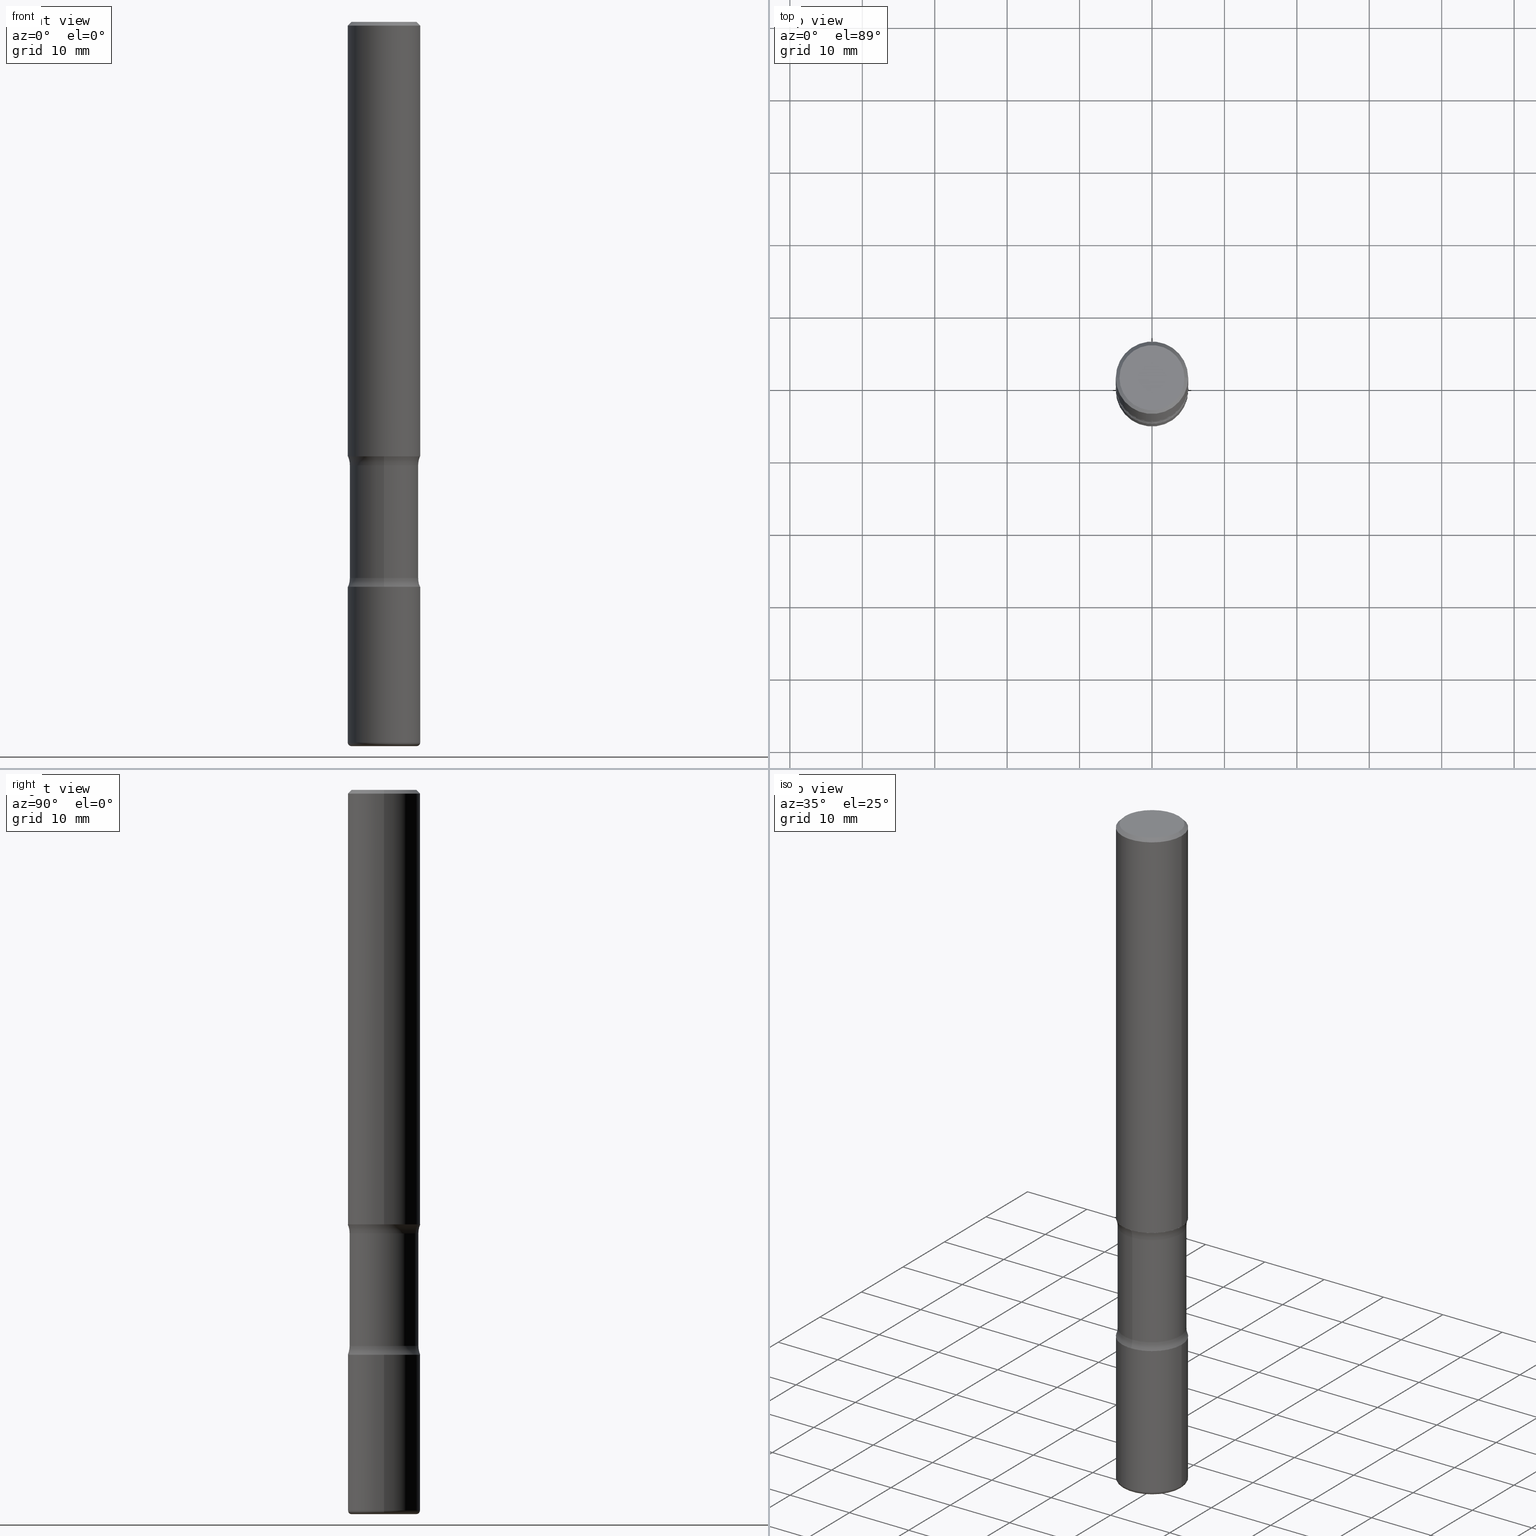
[diagram: canonical four-view strip — front | top / right | iso, engineering-drawing reading convention]
A machine part, canonical four-view strip (front | top / right | iso — engineering-drawing reading convention). The complete STEP part file that produces these views, byte-faithful:
ISO-10303-21;
HEADER;
FILE_DESCRIPTION (( 'STEP AP203' ),
    '1' );
FILE_NAME ('47670.STEP',
    '2024-03-02T06:50:35',
    ( '' ),
    ( '' ),
    'SwSTEP 2.0',
    'SolidWorks 2023',
    '' );
FILE_SCHEMA (( 'CONFIG_CONTROL_DESIGN' ));
ENDSEC;

DATA;
#1 = FACE_OUTER_BOUND ( 'NONE', #471, .T. ) ;
#2 = CIRCLE ( 'NONE', #203, 0.1968500000000001915 ) ;
#3 = AXIS2_PLACEMENT_3D ( 'NONE', #152, #329, #328 ) ;
#4 = SECURITY_CLASSIFICATION ( '', '', #187 ) ;
#5 = CARTESIAN_POINT ( 'NONE',  ( 4.890937612370289799E-31, -6.982962677686315028E-17, -0.02000000000000006981 ) ) ;
#6 = APPROVAL ( #221, 'UNSPECIFIED' ) ;
#7 = FACE_OUTER_BOUND ( 'NONE', #514, .T. ) ;
#8 = ORIENTED_EDGE ( 'NONE', *, *, #522, .F. ) ;
#9 = CARTESIAN_POINT ( 'NONE',  ( 9.710227154047748282E-29, -1.362793696358492956E-14, -3.937000000000000277 ) ) ;
#10 = CARTESIAN_POINT ( 'NONE',  ( 0.1768499999999998962, -1.316798864272041549E-15, 4.268512490109333727E-18 ) ) ;
#11 = CARTESIAN_POINT ( 'NONE',  ( 9.627810689950883669E-29, -1.374596203102546341E-14, -3.937000000000000277 ) ) ;
#12 = DIRECTION ( 'NONE',  ( 1.000000000000000000, 0.000000000000000000, 0.000000000000000000 ) ) ;
#13 = DIRECTION ( 'NONE',  ( 1.000000000000000000, -6.982962677686265133E-15, 0.000000000000000000 ) ) ;
#14 = DIRECTION ( 'NONE',  ( 2.540626945080027570E-29, -3.355209467880745729E-15, -1.000000000000000000 ) ) ;
#15 = ADVANCED_FACE ( 'NONE', ( #259 ), #44, .F. ) ;
#16 = DIRECTION ( 'NONE',  ( -2.445468806185136597E-29, 3.491481338843145583E-15, 1.000000000000000000 ) ) ;
#17 = APPLICATION_PROTOCOL_DEFINITION ( 'international standard', 'config_control_design', 1994, #419 ) ;
#18 = AXIS2_PLACEMENT_3D ( 'NONE', #355, #311, #346 ) ;
#19 = DIRECTION ( 'NONE',  ( 7.105427357601001859E-15, 1.000000000000000000, -3.491481338843145583E-15 ) ) ;
#20 = ORIENTED_EDGE ( 'NONE', *, *, #476, .F. ) ;
#21 = DATE_TIME_ROLE ( 'classification_date' ) ;
#22 = CARTESIAN_POINT ( 'NONE',  ( 7.509790156913936305E-29, -1.072199004345341739E-14, -3.070900000000000407 ) ) ;
#23 = VERTEX_POINT ( 'NONE', #408 ) ;
#24 = PERSON_AND_ORGANIZATION_ROLE ( 'creator' ) ;
#25 = LINE ( 'NONE', #550, #339 ) ;
#26 = CIRCLE ( 'NONE', #128, 0.1968500000000002748 ) ;
#27 = AXIS2_PLACEMENT_3D ( 'NONE', #11, #305, #535 ) ;
#28 = CIRCLE ( 'NONE', #289, 0.1968499999999999417 ) ;
#29 = ADVANCED_FACE ( 'NONE', ( #527 ), #442, .T. ) ;
#30 = PLANE ( 'NONE',  #183 ) ;
#31 = EDGE_CURVE ( 'NONE', #159, #254, #345, .T. ) ;
#32 = CARTESIAN_POINT ( 'NONE',  ( 5.832814217159742143E-29, -8.507337647765213396E-15, -2.410836174808470123 ) ) ;
#33 = DIRECTION ( 'NONE',  ( 2.540626945080028130E-29, -3.355209467880746123E-15, -1.000000000000000000 ) ) ;
#34 = EDGE_LOOP ( 'NONE', ( #316, #542, #361, #297 ) ) ;
#35 = APPROVAL ( #362, 'UNSPECIFIED' ) ;
#36 = AXIS2_PLACEMENT_3D ( 'NONE', #413, #417, #536 ) ;
#37 = ORIENTED_EDGE ( 'NONE', *, *, #295, .F. ) ;
#38 = CIRCLE ( 'NONE', #80, 0.1768499999999998962 ) ;
#39 = CARTESIAN_POINT ( 'NONE',  ( -1.350489030861251670E-15, -0.1968500000000109051, -3.070899999999999963 ) ) ;
#40 = ORIENTED_EDGE ( 'NONE', *, *, #101, .T. ) ;
#41 = CC_DESIGN_DATE_AND_TIME_ASSIGNMENT ( #448, #21, ( #4 ) ) ;
#42 = ORIENTED_EDGE ( 'NONE', *, *, #168, .T. ) ;
#43 = VERTEX_POINT ( 'NONE', #436 ) ;
#44 = TOROIDAL_SURFACE ( 'NONE', #420, 0.3120000000000000551, 0.1250000000000000278 ) ;
#45 = FACE_OUTER_BOUND ( 'NONE', #376, .T. ) ;
#46 = ADVANCED_FACE ( 'NONE', ( #56 ), #288, .T. ) ;
#47 = ADVANCED_FACE ( 'NONE', ( #484 ), #78, .F. ) ;
#48 = LINE ( 'NONE', #170, #98 ) ;
#49 = DIRECTION ( 'NONE',  ( 2.540626945080028130E-29, -3.355209467880746123E-15, -1.000000000000000000 ) ) ;
#50 = DIRECTION ( 'NONE',  ( -6.982962677686266711E-15, -1.000000000000000000, 3.491481338843145583E-15 ) ) ;
#51 = CARTESIAN_POINT ( 'NONE',  ( -0.1771500000000001962, -1.241845339225123848E-14, -3.917300000000000448 ) ) ;
#52 = ORIENTED_EDGE ( 'NONE', *, *, #247, .T. ) ;
#53 = COORDINATED_UNIVERSAL_TIME_OFFSET ( 5, 0, .BEHIND. ) ;
#54 = EDGE_CURVE ( 'NONE', #452, #83, #156, .T. ) ;
#55 = CARTESIAN_POINT ( 'NONE',  ( 0.1968500000000000527, -1.374596203102542003E-15, 9.598753983154302260E-30 ) ) ;
#56 = FACE_OUTER_BOUND ( 'NONE', #34, .T. ) ;
#57 = APPLICATION_PROTOCOL_DEFINITION ( 'international standard', 'config_control_design', 1994, #458 ) ;
#58 = ORIENTED_EDGE ( 'NONE', *, *, #386, .T. ) ;
#59 = DIRECTION ( 'NONE',  ( -2.445468806185136597E-29, 3.491481338843145583E-15, 1.000000000000000000 ) ) ;
#60 = COORDINATED_UNIVERSAL_TIME_OFFSET ( 5, 0, .BEHIND. ) ;
#61 = CIRCLE ( 'NONE', #204, 0.1870000000000001106 ) ;
#62 = DIRECTION ( 'NONE',  ( 6.982962677686266711E-15, 1.000000000000000000, -2.921762560068729806E-15 ) ) ;
#63 = EDGE_CURVE ( 'NONE', #179, #85, #390, .T. ) ;
#64 = ORIENTED_EDGE ( 'NONE', *, *, #374, .T. ) ;
#65 = MANIFOLD_SOLID_BREP ( 'Body-Move/Copy2[4]', #323 ) ;
#66 = ORIENTED_EDGE ( 'NONE', *, *, #253, .F. ) ;
#67 = CYLINDRICAL_SURFACE ( 'NONE', #454, 0.1968500000000000527 ) ;
#68 = ADVANCED_FACE ( 'NONE', ( #371 ), #378, .F. ) ;
#69 = DIRECTION ( 'NONE',  ( 2.438088387897960049E-29, -3.491481338843145188E-15, -1.000000000000000000 ) ) ;
#70 = CIRCLE ( 'NONE', #3, 0.1771500000000001962 ) ;
#71 = VERTEX_POINT ( 'NONE', #155 ) ;
#72 = CARTESIAN_POINT ( 'NONE',  ( 1.234936949548815209E-15, 0.1768499999999998962, -6.153342185293597578E-16 ) ) ;
#73 = EDGE_CURVE ( 'NONE', #23, #327, #26, .T. ) ;
#74 = DIRECTION ( 'NONE',  ( -6.982962677686264344E-15, -1.000000000000000000, 0.000000000000000000 ) ) ;
#75 = DIRECTION ( 'NONE',  ( -2.445468806185136597E-29, 3.491481338843145583E-15, 1.000000000000000000 ) ) ;
#76 = ORIENTED_EDGE ( 'NONE', *, *, #153, .F. ) ;
#77 = CARTESIAN_POINT ( 'NONE',  ( 4.890937612370289799E-31, -6.982962677686315028E-17, -0.02000000000000006981 ) ) ;
#78 = TOROIDAL_SURFACE ( 'NONE', #118, 0.3120000000000001106, 0.1250000000000000833 ) ;
#79 = ORIENTED_EDGE ( 'NONE', *, *, #153, .T. ) ;
#80 = AXIS2_PLACEMENT_3D ( 'NONE', #422, #75, #245 ) ;
#81 = LOCAL_TIME ( 1, 50, 35.00000000000000000, #227 ) ;
#82 = LENGTH_MEASURE_WITH_UNIT ( LENGTH_MEASURE( 0.02539999999999999897 ), #307 );
#83 = VERTEX_POINT ( 'NONE', #320 ) ;
#84 = CARTESIAN_POINT ( 'NONE',  ( 0.000000000000000000, 0.000000000000000000, 0.000000000000000000 ) ) ;
#85 = VERTEX_POINT ( 'NONE', #91 ) ;
#86 = DIRECTION ( 'NONE',  ( -2.445468806185136597E-29, 3.491481338843145583E-15, 1.000000000000000000 ) ) ;
#87 = DIRECTION ( 'NONE',  ( 6.860497997771529196E-15, 1.000000000000000000, 0.000000000000000000 ) ) ;
#88 = PRODUCT_DEFINITION_SHAPE ( 'NONE', 'NONE',  #207 ) ;
#89 = CC_DESIGN_PERSON_AND_ORGANIZATION_ASSIGNMENT ( #349, #24, ( #157 ) ) ;
#90 = CARTESIAN_POINT ( 'NONE',  ( 0.1771500000000001962, -1.491421168700237936E-14, -3.917300000000000448 ) ) ;
#91 = CARTESIAN_POINT ( 'NONE',  ( -0.1968500000000001360, -2.760000047352310125E-15, -2.362200000000000077 ) ) ;
#92 = ORIENTED_EDGE ( 'NONE', *, *, #513, .F. ) ;
#93 = APPROVAL_STATUS ( 'not_yet_approved' ) ;
#94 = DIRECTION ( 'NONE',  ( 2.540626945080028130E-29, -3.355209467880746123E-15, -1.000000000000000000 ) ) ;
#95 = AXIS2_PLACEMENT_3D ( 'NONE', #51, #19, #267 ) ;
#96 = PLANE ( 'NONE',  #477 ) ;
#97 = AXIS2_PLACEMENT_3D ( 'NONE', #173, #216, #13 ) ;
#98 = VECTOR ( 'NONE', #303, 39.37007874015748143 ) ;
#99 = CARTESIAN_POINT ( 'NONE',  ( 9.579634954469036932E-29, -1.367717984865025539E-14, -3.917300000000000448 ) ) ;
#100 = PERSON_AND_ORGANIZATION ( #220, #313 ) ;
#101 = EDGE_CURVE ( 'NONE', #210, #468, #538, .T. ) ;
#102 = FACE_OUTER_BOUND ( 'NONE', #143, .T. ) ;
#103 = DIRECTION ( 'NONE',  ( 2.540626945080028130E-29, -3.355209467880746123E-15, -1.000000000000000000 ) ) ;
#104 = CARTESIAN_POINT ( 'NONE',  ( 5.847933680864636237E-29, -8.485685715193371918E-15, -2.410836174808470123 ) ) ;
#105 = ORIENTED_EDGE ( 'NONE', *, *, #386, .F. ) ;
#106 = EDGE_CURVE ( 'NONE', #83, #452, #453, .T. ) ;
#107 = DIRECTION ( 'NONE',  ( 1.000000000000000000, -6.982962677686272233E-15, 0.000000000000000000 ) ) ;
#108 = ORIENTED_EDGE ( 'NONE', *, *, #476, .T. ) ;
#109 = AXIS2_PLACEMENT_3D ( 'NONE', #404, #230, #308 ) ;
#110 = PERSON_AND_ORGANIZATION ( #220, #313 ) ;
#111 = CIRCLE ( 'NONE', #379, 0.01969999999999985998 ) ;
#112 = EDGE_LOOP ( 'NONE', ( #66, #209, #309, #286 ) ) ;
#113 = DIRECTION ( 'NONE',  ( -6.982962677686265133E-15, -1.000000000000000000, 0.000000000000000000 ) ) ;
#114 = EDGE_CURVE ( 'NONE', #43, #83, #248, .T. ) ;
#115 = DIRECTION ( 'NONE',  ( -2.445468806185136597E-29, 3.491481338843145583E-15, 1.000000000000000000 ) ) ;
#116 = DIRECTION ( 'NONE',  ( 1.000000000000000000, -6.982962677686265133E-15, 0.000000000000000000 ) ) ;
#117 = FACE_OUTER_BOUND ( 'NONE', #275, .T. ) ;
#118 = AXIS2_PLACEMENT_3D ( 'NONE', #359, #103, #226 ) ;
#119 =( GEOMETRIC_REPRESENTATION_CONTEXT ( 3 ) GLOBAL_UNCERTAINTY_ASSIGNED_CONTEXT ( ( #443 ) ) GLOBAL_UNIT_ASSIGNED_CONTEXT ( ( #302, #281, #498 ) ) REPRESENTATION_CONTEXT ( 'NONE', 'WORKASPACE' ) );
#120 = ADVANCED_FACE ( 'NONE', ( #1 ), #96, .F. ) ;
#121 = CARTESIAN_POINT ( 'NONE',  ( 7.509790156913936305E-29, -1.072199004345341739E-14, -3.070900000000000407 ) ) ;
#122 = ORIENTED_EDGE ( 'NONE', *, *, #101, .F. ) ;
#123 = EDGE_LOOP ( 'NONE', ( #451, #241, #394, #380 ) ) ;
#124 = CIRCLE ( 'NONE', #139, 0.1870000000000000551 ) ;
#125 = ORIENTED_EDGE ( 'NONE', *, *, #395, .F. ) ;
#126 = CARTESIAN_POINT ( 'NONE',  ( 7.386223780689915972E-29, -1.055880548925453445E-14, -3.022263825191530362 ) ) ;
#127 = CC_DESIGN_PERSON_AND_ORGANIZATION_ASSIGNMENT ( #365, #537, ( #4 ) ) ;
#128 = AXIS2_PLACEMENT_3D ( 'NONE', #492, #433, #435 ) ;
#129 = LOCAL_TIME ( 1, 50, 35.00000000000000000, #53 ) ;
#130 = DIRECTION ( 'NONE',  ( 2.540626945080028130E-29, -3.355209467880746123E-15, -1.000000000000000000 ) ) ;
#131 = ORIENTED_EDGE ( 'NONE', *, *, #292, .T. ) ;
#132 = DIRECTION ( 'NONE',  ( 6.982962677686266711E-15, 1.000000000000000000, -2.921762560068729017E-15 ) ) ;
#133 = CARTESIAN_POINT ( 'NONE',  ( 7.509790156913936305E-29, -1.072199004345341739E-14, -3.070900000000000407 ) ) ;
#134 = CARTESIAN_POINT ( 'NONE',  ( 7.390851908567657271E-29, -1.055217774671693035E-14, -3.022263825191530362 ) ) ;
#135 = APPROVAL_ROLE ( '' ) ;
#136 = DIRECTION ( 'NONE',  ( 1.000000000000000000, -6.982962677686279332E-15, 0.000000000000000000 ) ) ;
#137 = CIRCLE ( 'NONE', #462, 0.1968500000000002748 ) ;
#138 = CARTESIAN_POINT ( 'NONE',  ( 1.374596203102617931E-15, 0.1968499999999894223, -3.070900000000000851 ) ) ;
#139 = AXIS2_PLACEMENT_3D ( 'NONE', #368, #502, #62 ) ;
#140 = DIRECTION ( 'NONE',  ( 2.540626945080028130E-29, -3.355209467880745729E-15, -1.000000000000000000 ) ) ;
#141 = DIRECTION ( 'NONE',  ( -2.445468806185136597E-29, 3.491481338843145583E-15, 1.000000000000000000 ) ) ;
#142 = DIRECTION ( 'NONE',  ( -2.438088387897960049E-29, 3.491481338843145188E-15, 1.000000000000000000 ) ) ;
#143 = EDGE_LOOP ( 'NONE', ( #64, #553, #500, #520 ) ) ;
#144 = ORIENTED_EDGE ( 'NONE', *, *, #431, .F. ) ;
#145 = DIRECTION ( 'NONE',  ( -1.000000000000000000, 6.982962677686265922E-15, -4.876176775795935793E-29 ) ) ;
#146 = ORIENTED_EDGE ( 'NONE', *, *, #314, .F. ) ;
#147 = ADVANCED_FACE ( 'NONE', ( #496 ), #164, .F. ) ;
#148 = ORIENTED_EDGE ( 'NONE', *, *, #374, .F. ) ;
#149 = CARTESIAN_POINT ( 'NONE',  ( 1.305814020727405957E-15, 0.1869999999999895079, -3.022263825191530806 ) ) ;
#150 = DIRECTION ( 'NONE',  ( -6.982962677686265922E-15, -1.000000000000000000, 3.355209467880745729E-15 ) ) ;
#151 = ORIENTED_EDGE ( 'NONE', *, *, #258, .F. ) ;
#152 = CARTESIAN_POINT ( 'NONE',  ( 9.627810689950883669E-29, -1.374596203102546341E-14, -3.937000000000000277 ) ) ;
#153 = EDGE_CURVE ( 'NONE', #210, #425, #534, .T. ) ;
#154 = CARTESIAN_POINT ( 'NONE',  ( 5.709247840935720689E-29, -8.344153093566332027E-15, -2.362200000000000077 ) ) ;
#155 = CARTESIAN_POINT ( 'NONE',  ( -0.1968499999999999417, 1.304766576325678113E-15, -0.02000000000000006981 ) ) ;
#156 = CIRCLE ( 'NONE', #182, 0.1968500000000001082 ) ;
#157 = PRODUCT_DEFINITION_FORMATION_WITH_SPECIFIED_SOURCE ( 'ANY', '', #479, .NOT_KNOWN. ) ;
#158 = CARTESIAN_POINT ( 'NONE',  ( -1.316701078222244837E-15, -0.1870000000000086315, -2.410836174808469679 ) ) ;
#159 = VERTEX_POINT ( 'NONE', #347 ) ;
#160 = DIRECTION ( 'NONE',  ( -2.445468806185136877E-29, 3.491481338843145188E-15, 1.000000000000000000 ) ) ;
#161 = ORIENTED_EDGE ( 'NONE', *, *, #31, .T. ) ;
#162 = ORIENTED_EDGE ( 'NONE', *, *, #163, .T. ) ;
#163 = EDGE_CURVE ( 'NONE', #85, #71, #360, .T. ) ;
#164 = TOROIDAL_SURFACE ( 'NONE', #412, 0.3120000000000001106, 0.1250000000000000833 ) ;
#165 = AXIS2_PLACEMENT_3D ( 'NONE', #521, #529, #132 ) ;
#166 = ORIENTED_EDGE ( 'NONE', *, *, #363, .F. ) ;
#167 = CARTESIAN_POINT ( 'NONE',  ( 7.390851908567657271E-29, -1.055217774671693035E-14, -3.022263825191530362 ) ) ;
#168 = EDGE_CURVE ( 'NONE', #198, #480, #2, .T. ) ;
#169 = CARTESIAN_POINT ( 'NONE',  ( 0.1968500000000001915, -1.209658624655596058E-14, -3.070900000000000407 ) ) ;
#170 = CARTESIAN_POINT ( 'NONE',  ( -0.1968500000000001360, 1.398703375343758182E-15, -9.682923725166790684E-30 ) ) ;
#171 = AXIS2_PLACEMENT_3D ( 'NONE', #167, #130, #315 ) ;
#172 = CARTESIAN_POINT ( 'NONE',  ( 5.776686413970529753E-29, -8.247577218615279626E-15, -2.362200000000000077 ) ) ;
#173 = CARTESIAN_POINT ( 'NONE',  ( 5.776686413970529753E-29, -8.247577218615279626E-15, -2.362200000000000077 ) ) ;
#174 = CARTESIAN_POINT ( 'NONE',  ( 7.509790156913936305E-29, -1.072199004345341739E-14, -3.070900000000000407 ) ) ;
#175 = DIRECTION ( 'NONE',  ( 2.540626945080028130E-29, -3.355209467880746123E-15, -1.000000000000000000 ) ) ;
#176 = DATE_AND_TIME ( #310, #478 ) ;
#177 = DIRECTION ( 'NONE',  ( 2.540626945080028130E-29, -3.355209467880746123E-15, -1.000000000000000000 ) ) ;
#178 = LINE ( 'NONE', #55, #517 ) ;
#179 = VERTEX_POINT ( 'NONE', #396 ) ;
#180 = APPROVAL_ROLE ( '' ) ;
#181 = CYLINDRICAL_SURFACE ( 'NONE', #18, 0.1968500000000001360 ) ;
#182 = AXIS2_PLACEMENT_3D ( 'NONE', #488, #16, #401 ) ;
#183 = AXIS2_PLACEMENT_3D ( 'NONE', #121, #364, #150 ) ;
#184 = APPROVAL_PERSON_ORGANIZATION ( #100, #35, #135 ) ;
#185 = CARTESIAN_POINT ( 'NONE',  ( 5.776686413970529753E-29, -8.247577218615279626E-15, -2.362200000000000077 ) ) ;
#186 = DESIGN_CONTEXT ( 'detailed design', #458, 'design' ) ;
#187 = SECURITY_CLASSIFICATION_LEVEL ( 'unclassified' ) ;
#188 = ORIENTED_EDGE ( 'NONE', *, *, #300, .F. ) ;
#189 = APPROVAL_ROLE ( '' ) ;
#190 = APPROVAL ( #93, 'UNSPECIFIED' ) ;
#191 = PLANE ( 'NONE',  #539 ) ;
#192 = CALENDAR_DATE ( 2024, 2, 3 ) ;
#193 = ORIENTED_EDGE ( 'NONE', *, *, #54, .F. ) ;
#194 = DIRECTION ( 'NONE',  ( 1.000000000000000000, -6.982962677686266711E-15, 4.883557194083112340E-29 ) ) ;
#195 = CIRCLE ( 'NONE', #255, 0.1968500000000001915 ) ;
#196 = ADVANCED_FACE ( 'NONE', ( #257 ), #393, .F. ) ;
#197 = CARTESIAN_POINT ( 'NONE',  ( -0.1968500000000001915, -1.080088157070807781E-14, -3.070900000000000407 ) ) ;
#198 = VERTEX_POINT ( 'NONE', #138 ) ;
#199 = DIRECTION ( 'NONE',  ( 6.982962677686265922E-15, 1.000000000000000000, -2.775563112689112751E-15 ) ) ;
#200 = DIRECTION ( 'NONE',  ( 2.540626945080028130E-29, -3.355209467880745729E-15, -1.000000000000000000 ) ) ;
#201 = VERTEX_POINT ( 'NONE', #441 ) ;
#202 = CARTESIAN_POINT ( 'NONE',  ( 4.890937612370289799E-31, -6.982962677686315028E-17, -0.02000000000000006981 ) ) ;
#203 = AXIS2_PLACEMENT_3D ( 'NONE', #133, #526, #263 ) ;
#204 = AXIS2_PLACEMENT_3D ( 'NONE', #32, #33, #377 ) ;
#205 = CC_DESIGN_APPROVAL ( #35, ( #4 ) ) ;
#206 = ORIENTED_EDGE ( 'NONE', *, *, #114, .T. ) ;
#207 = PRODUCT_DEFINITION ( 'UNKNOWN', '', #157, #186 ) ;
#208 = CARTESIAN_POINT ( 'NONE',  ( -2.140475375304660122E-15, -0.3120000000000086038, -2.410836174808469234 ) ) ;
#209 = ORIENTED_EDGE ( 'NONE', *, *, #168, .F. ) ;
#210 = VERTEX_POINT ( 'NONE', #10 ) ;
#211 = CIRCLE ( 'NONE', #229, 0.1250000000000000278 ) ;
#212 = AXIS2_PLACEMENT_3D ( 'NONE', #5, #439, #399 ) ;
#213 = ADVANCED_FACE ( 'NONE', ( #7 ), #523, .F. ) ;
#214 = CARTESIAN_POINT ( 'NONE',  ( 9.579634954469036932E-29, -1.367717984865025539E-14, -3.917300000000000448 ) ) ;
#215 = ORIENTED_EDGE ( 'NONE', *, *, #106, .T. ) ;
#216 = DIRECTION ( 'NONE',  ( -2.445468806185136597E-29, 3.491481338843145583E-15, 1.000000000000000000 ) ) ;
#217 = AXIS2_PLACEMENT_3D ( 'NONE', #185, #531, #116 ) ;
#218 = CIRCLE ( 'NONE', #165, 0.1870000000000001106 ) ;
#219 = DIRECTION ( 'NONE',  ( 6.982962677686265922E-15, 1.000000000000000000, -3.355209467880746123E-15 ) ) ;
#220 = PERSON ( 'UNSPECIFIED', 'UNSPECIFIED', 'UNSPECIFIED', ('UNSPECIFIED'), ('UNSPECIFIED'), ('UNSPECIFIED') ) ;
#221 = APPROVAL_STATUS ( 'not_yet_approved' ) ;
#222 = DIRECTION ( 'NONE',  ( 0.7071067811865472397, -7.319954787623254468E-15, -0.7071067811865477948 ) ) ;
#223 = DIRECTION ( 'NONE',  ( -2.445468806185136597E-29, 3.491481338843145583E-15, 1.000000000000000000 ) ) ;
#224 = CALENDAR_DATE ( 2024, 2, 3 ) ;
#225 = DIRECTION ( 'NONE',  ( -2.445468806185136597E-29, 3.491481338843145583E-15, 1.000000000000000000 ) ) ;
#226 = DIRECTION ( 'NONE',  ( 6.982962677686265922E-15, 1.000000000000000000, -3.355209467880746123E-15 ) ) ;
#227 = COORDINATED_UNIVERSAL_TIME_OFFSET ( 5, 0, .BEHIND. ) ;
#228 = ORIENTED_EDGE ( 'NONE', *, *, #247, .F. ) ;
#229 = AXIS2_PLACEMENT_3D ( 'NONE', #466, #501, #113 ) ;
#230 = DIRECTION ( 'NONE',  ( -2.445468806185136597E-29, 3.491481338843145583E-15, 1.000000000000000000 ) ) ;
#231 = APPROVAL_PERSON_ORGANIZATION ( #317, #6, #180 ) ;
#232 = CC_DESIGN_DATE_AND_TIME_ASSIGNMENT ( #494, #481, ( #207 ) ) ;
#233 = ORIENTED_EDGE ( 'NONE', *, *, #163, .F. ) ;
#234 = APPROVAL_DATE_TIME ( #176, #190 ) ;
#235 = DIRECTION ( 'NONE',  ( 1.000000000000000000, -6.982962677686266711E-15, 4.876176775795935793E-29 ) ) ;
#236 = DIRECTION ( 'NONE',  ( 6.982962677686265922E-15, 1.000000000000000000, -3.355209467880746123E-15 ) ) ;
#237 = PERSON_AND_ORGANIZATION_ROLE ( 'creator' ) ;
#238 = DIRECTION ( 'NONE',  ( -0.7071067811865472397, 2.468850131082253905E-15, -0.7071067811865477948 ) ) ;
#239 = DIRECTION ( 'NONE',  ( 2.540626945080028130E-29, -3.355209467880746123E-15, -1.000000000000000000 ) ) ;
#240 = AXIS2_PLACEMENT_3D ( 'NONE', #174, #273, #145 ) ;
#241 = ORIENTED_EDGE ( 'NONE', *, *, #253, .T. ) ;
#242 = CARTESIAN_POINT ( 'NONE',  ( 0.000000000000000000, 0.000000000000000000, 0.000000000000000000 ) ) ;
#243 = EDGE_CURVE ( 'NONE', #179, #425, #178, .T. ) ;
#244 = DIRECTION ( 'NONE',  ( -1.000000000000000000, 6.982962677686265922E-15, -4.876176775795935793E-29 ) ) ;
#245 = DIRECTION ( 'NONE',  ( 1.000000000000000000, -6.982962677686266711E-15, 4.875932113059880811E-29 ) ) ;
#246 = ORIENTED_EDGE ( 'NONE', *, *, #559, .F. ) ;
#247 = EDGE_CURVE ( 'NONE', #335, #426, #277, .T. ) ;
#248 = CIRCLE ( 'NONE', #95, 0.01969999999999985998 ) ;
#249 = APPROVAL_PERSON_ORGANIZATION ( #409, #190, #189 ) ;
#250 = VERTEX_POINT ( 'NONE', #290 ) ;
#251 = MANIFOLD_SOLID_BREP ( 'Body-Move/Copy2[1]', #428 ) ;
#252 = EDGE_LOOP ( 'NONE', ( #233, #341, #382, #166 ) ) ;
#253 = EDGE_CURVE ( 'NONE', #480, #201, #504, .T. ) ;
#254 = VERTEX_POINT ( 'NONE', #149 ) ;
#255 = AXIS2_PLACEMENT_3D ( 'NONE', #350, #141, #270 ) ;
#256 = MANIFOLD_SOLID_BREP ( 'Body-Move/Copy2[2]', #545 ) ;
#257 = FACE_OUTER_BOUND ( 'NONE', #540, .T. ) ;
#258 = EDGE_CURVE ( 'NONE', #327, #23, #137, .T. ) ;
#259 = FACE_OUTER_BOUND ( 'NONE', #123, .T. ) ;
#260 = CALENDAR_DATE ( 2024, 2, 3 ) ;
#261 = AXIS2_PLACEMENT_3D ( 'NONE', #99, #223, #397 ) ;
#262 = CIRCLE ( 'NONE', #369, 0.1968500000000001915 ) ;
#263 = DIRECTION ( 'NONE',  ( 6.982962677686265133E-15, 1.000000000000000000, -2.775563112689113934E-15 ) ) ;
#264 = ORIENTED_EDGE ( 'NONE', *, *, #533, .F. ) ;
#265 = CYLINDRICAL_SURFACE ( 'NONE', #343, 0.1870000000000000828 ) ;
#266 = ADVANCED_BREP_SHAPE_REPRESENTATION ( '47670', ( #251, #256, #65, #403 ), #119 ) ;
#267 = DIRECTION ( 'NONE',  ( -1.000000000000000000, 7.105427357600978193E-15, 0.000000000000000000 ) ) ;
#268 = ORIENTED_EDGE ( 'NONE', *, *, #395, .T. ) ;
#269 = DATE_AND_TIME ( #260, #549 ) ;
#270 = DIRECTION ( 'NONE',  ( 1.000000000000000000, -6.982962677686272233E-15, 0.000000000000000000 ) ) ;
#271 = EDGE_CURVE ( 'NONE', #198, #254, #211, .T. ) ;
#272 = ORIENTED_EDGE ( 'NONE', *, *, #544, .F. ) ;
#273 = DIRECTION ( 'NONE',  ( 2.438088387897960049E-29, -3.491481338843145188E-15, -1.000000000000000000 ) ) ;
#274 = ORIENTED_EDGE ( 'NONE', *, *, #73, .F. ) ;
#275 = EDGE_LOOP ( 'NONE', ( #423, #557, #8, #105 ) ) ;
#276 = PERSON_AND_ORGANIZATION_ROLE ( 'design_supplier' ) ;
#277 = CIRCLE ( 'NONE', #312, 0.1968500000000001915 ) ;
#278 = FACE_OUTER_BOUND ( 'NONE', #509, .T. ) ;
#279 = AXIS2_PLACEMENT_3D ( 'NONE', #84, #515, #291 ) ;
#280 = EDGE_LOOP ( 'NONE', ( #246, #551, #321, #460 ) ) ;
#281 =( NAMED_UNIT ( * ) PLANE_ANGLE_UNIT ( ) SI_UNIT ( $, .RADIAN. ) );
#282 = EDGE_LOOP ( 'NONE', ( #125, #37 ) ) ;
#283 = DIRECTION ( 'NONE',  ( 1.000000000000000000, -6.982962677686266711E-15, 0.000000000000000000 ) ) ;
#284 = APPROVAL_DATE_TIME ( #398, #35 ) ;
#285 = CARTESIAN_POINT ( 'NONE',  ( 9.579634954469036932E-29, -1.367717984865025539E-14, -3.917300000000000448 ) ) ;
#286 = ORIENTED_EDGE ( 'NONE', *, *, #512, .T. ) ;
#287 = CYLINDRICAL_SURFACE ( 'NONE', #518, 0.1968500000000001360 ) ;
#288 = TOROIDAL_SURFACE ( 'NONE', #261, 0.1771500000000001962, 0.01969999999999985998 ) ;
#289 = AXIS2_PLACEMENT_3D ( 'NONE', #77, #318, #340 ) ;
#290 = CARTESIAN_POINT ( 'NONE',  ( 0.1771500000000001962, -1.498299386937758739E-14, -3.937000000000000277 ) ) ;
#291 = DIRECTION ( 'NONE',  ( 1.000000000000000000, -6.982962677686266711E-15, 4.876176775795935793E-29 ) ) ;
#292 = EDGE_CURVE ( 'NONE', #159, #327, #528, .T. ) ;
#293 = ORIENTED_EDGE ( 'NONE', *, *, #314, .T. ) ;
#294 = VECTOR ( 'NONE', #400, 39.37007874015748143 ) ;
#295 = EDGE_CURVE ( 'NONE', #43, #250, #299, .T. ) ;
#296 = FACE_OUTER_BOUND ( 'NONE', #252, .T. ) ;
#297 = ORIENTED_EDGE ( 'NONE', *, *, #106, .F. ) ;
#298 = CYLINDRICAL_SURFACE ( 'NONE', #279, 0.1968500000000000527 ) ;
#299 = CIRCLE ( 'NONE', #36, 0.1771500000000001962 ) ;
#300 = EDGE_CURVE ( 'NONE', #201, #254, #124, .T. ) ;
#301 = CC_DESIGN_APPROVAL ( #6, ( #207 ) ) ;
#302 =( CONVERSION_BASED_UNIT ( 'INCH', #82 ) LENGTH_UNIT ( ) NAMED_UNIT ( #558 ) );
#303 = DIRECTION ( 'NONE',  ( -2.445468806185136877E-29, 3.491481338843145188E-15, 1.000000000000000000 ) ) ;
#304 = ADVANCED_FACE ( 'NONE', ( #543 ), #67, .T. ) ;
#305 = DIRECTION ( 'NONE',  ( 2.438088387897960049E-29, -3.491481338843145188E-15, -1.000000000000000000 ) ) ;
#306 = COORDINATED_UNIVERSAL_TIME_OFFSET ( 5, 0, .BEHIND. ) ;
#307 =( LENGTH_UNIT ( ) NAMED_UNIT ( * ) SI_UNIT ( $, .METRE. ) );
#308 = DIRECTION ( 'NONE',  ( 1.000000000000000000, -6.982962677686266711E-15, 4.875932113059880811E-29 ) ) ;
#309 = ORIENTED_EDGE ( 'NONE', *, *, #271, .T. ) ;
#310 = CALENDAR_DATE ( 2024, 2, 3 ) ;
#311 = DIRECTION ( 'NONE',  ( -2.445468806185136597E-29, 3.491481338843145583E-15, 1.000000000000000000 ) ) ;
#312 = AXIS2_PLACEMENT_3D ( 'NONE', #450, #59, #107 ) ;
#313 = ORGANIZATION ( 'UNSPECIFIED', 'UNSPECIFIED', '' ) ;
#314 = EDGE_CURVE ( 'NONE', #468, #71, #330, .T. ) ;
#315 = DIRECTION ( 'NONE',  ( 6.982962677686265922E-15, 1.000000000000000000, -3.355209467880746123E-15 ) ) ;
#316 = ORIENTED_EDGE ( 'NONE', *, *, #114, .F. ) ;
#317 = PERSON_AND_ORGANIZATION ( #220, #313 ) ;
#318 = DIRECTION ( 'NONE',  ( -2.445468806185136597E-29, 3.491481338843145583E-15, 1.000000000000000000 ) ) ;
#319 = ORIENTED_EDGE ( 'NONE', *, *, #410, .T. ) ;
#320 = CARTESIAN_POINT ( 'NONE',  ( -0.1968500000000000805, -1.227847647330649996E-14, -3.917300000000000448 ) ) ;
#321 = ORIENTED_EDGE ( 'NONE', *, *, #73, .T. ) ;
#322 = PERSON_AND_ORGANIZATION_ROLE ( 'design_owner' ) ;
#323 = CLOSED_SHELL ( 'NONE', ( #495, #15, #47, #147, #120, #366, #68, #510 ) ) ;
#324 = DIRECTION ( 'NONE',  ( 2.540626945080028130E-29, -3.355209467880746123E-15, -1.000000000000000000 ) ) ;
#325 = AXIS2_PLACEMENT_3D ( 'NONE', #375, #556, #546 ) ;
#326 = CC_DESIGN_SECURITY_CLASSIFICATION ( #4, ( #157 ) ) ;
#327 = VERTEX_POINT ( 'NONE', #411 ) ;
#328 = DIRECTION ( 'NONE',  ( 1.000000000000000000, -6.982962677686265133E-15, 0.000000000000000000 ) ) ;
#329 = DIRECTION ( 'NONE',  ( -2.445468806185136597E-29, 3.491481338843145583E-15, 1.000000000000000000 ) ) ;
#330 = LINE ( 'NONE', #407, #357 ) ;
#331 = AXIS2_PLACEMENT_3D ( 'NONE', #208, #381, #87 ) ;
#332 = CC_DESIGN_PERSON_AND_ORGANIZATION_ASSIGNMENT ( #110, #322, ( #479 ) ) ;
#333 = DIRECTION ( 'NONE',  ( -2.445468806185136597E-29, 3.491481338843145583E-15, 1.000000000000000000 ) ) ;
#334 = CARTESIAN_POINT ( 'NONE',  ( 0.1968500000000000805, -1.505177605175279857E-14, -3.917300000000000448 ) ) ;
#335 = VERTEX_POINT ( 'NONE', #197 ) ;
#336 = ORIENTED_EDGE ( 'NONE', *, *, #243, .F. ) ;
#337 = AXIS2_PLACEMENT_3D ( 'NONE', #214, #225, #389 ) ;
#338 = CIRCLE ( 'NONE', #97, 0.1968500000000001082 ) ;
#339 = VECTOR ( 'NONE', #160, 39.37007874015748143 ) ;
#340 = DIRECTION ( 'NONE',  ( 1.000000000000000000, -6.982962677686266711E-15, 0.000000000000000000 ) ) ;
#341 = ORIENTED_EDGE ( 'NONE', *, *, #544, .T. ) ;
#342 = DIRECTION ( 'NONE',  ( 6.982962677686266711E-15, 1.000000000000000000, -2.921762560068729806E-15 ) ) ;
#343 = AXIS2_PLACEMENT_3D ( 'NONE', #560, #177, #445 ) ;
#344 = DIRECTION ( 'NONE',  ( 6.982962677686265922E-15, 1.000000000000000000, -3.355209467880745729E-15 ) ) ;
#345 = LINE ( 'NONE', #348, #356 ) ;
#346 = DIRECTION ( 'NONE',  ( 1.000000000000000000, -6.982962677686266711E-15, 4.876176775795935793E-29 ) ) ;
#347 = CARTESIAN_POINT ( 'NONE',  ( 1.305814020727390771E-15, 0.1869999999999916174, -2.410836174808470567 ) ) ;
#348 = CARTESIAN_POINT ( 'NONE',  ( 1.305814020727429425E-15, 0.1869999999999864548, -3.937000000000000721 ) ) ;
#349 = PERSON_AND_ORGANIZATION ( #220, #313 ) ;
#350 = CARTESIAN_POINT ( 'NONE',  ( 7.509790156913936305E-29, -1.072199004345341739E-14, -3.070900000000000407 ) ) ;
#351 = DIRECTION ( 'NONE',  ( -2.445468806185136877E-29, 3.491481338843145188E-15, 1.000000000000000000 ) ) ;
#352 = ADVANCED_FACE ( 'NONE', ( #506 ), #191, .F. ) ;
#353 = ORIENTED_EDGE ( 'NONE', *, *, #431, .T. ) ;
#354 = PERSON_AND_ORGANIZATION ( #220, #313 ) ;
#355 = CARTESIAN_POINT ( 'NONE',  ( 0.000000000000000000, 0.000000000000000000, 0.000000000000000000 ) ) ;
#356 = VECTOR ( 'NONE', #140, 39.37007874015748143 ) ;
#357 = VECTOR ( 'NONE', #238, 39.37007874015748143 ) ;
#358 = CARTESIAN_POINT ( 'NONE',  ( 0.1968499999999999417, -1.420318657638188727E-15, -0.02000000000000006981 ) ) ;
#359 = CARTESIAN_POINT ( 'NONE',  ( 5.847933680864636237E-29, -8.485685715193371918E-15, -2.410836174808470123 ) ) ;
#360 = LINE ( 'NONE', #446, #294 ) ;
#361 = ORIENTED_EDGE ( 'NONE', *, *, #533, .T. ) ;
#362 = APPROVAL_STATUS ( 'not_yet_approved' ) ;
#363 = EDGE_CURVE ( 'NONE', #71, #425, #429, .T. ) ;
#364 = DIRECTION ( 'NONE',  ( -2.540626945080027570E-29, 3.355209467880745729E-15, 1.000000000000000000 ) ) ;
#365 = PERSON_AND_ORGANIZATION ( #220, #313 ) ;
#366 = ADVANCED_FACE ( 'NONE', ( #456 ), #30, .F. ) ;
#367 = VECTOR ( 'NONE', #222, 39.37007874015748143 ) ;
#368 = CARTESIAN_POINT ( 'NONE',  ( 7.386223780689915972E-29, -1.055880548925453445E-14, -3.022263825191530362 ) ) ;
#369 = AXIS2_PLACEMENT_3D ( 'NONE', #22, #239, #370 ) ;
#370 = DIRECTION ( 'NONE',  ( 6.982962677686265133E-15, 1.000000000000000000, -2.775563112689113934E-15 ) ) ;
#371 = FACE_OUTER_BOUND ( 'NONE', #112, .T. ) ;
#372 = ORIENTED_EDGE ( 'NONE', *, *, #522, .T. ) ;
#373 = DIRECTION ( 'NONE',  ( 1.000000000000000000, -6.860497997771530774E-15, 4.842467728730022328E-29 ) ) ;
#374 = EDGE_CURVE ( 'NONE', #159, #474, #61, .T. ) ;
#375 = CARTESIAN_POINT ( 'NONE',  ( 4.890937612370289799E-31, -6.982962677686315028E-17, -0.02000000000000006981 ) ) ;
#376 = EDGE_LOOP ( 'NONE', ( #449, #427, #161, #188 ) ) ;
#377 = DIRECTION ( 'NONE',  ( 6.982962677686266711E-15, 1.000000000000000000, -2.921762560068729017E-15 ) ) ;
#378 = TOROIDAL_SURFACE ( 'NONE', #171, 0.3120000000000000551, 0.1250000000000000278 ) ;
#379 = AXIS2_PLACEMENT_3D ( 'NONE', #90, #50, #136 ) ;
#380 = ORIENTED_EDGE ( 'NONE', *, *, #271, .F. ) ;
#381 = DIRECTION ( 'NONE',  ( 1.000000000000000000, -6.860497997771530774E-15, 4.842467728730022328E-29 ) ) ;
#382 = ORIENTED_EDGE ( 'NONE', *, *, #243, .T. ) ;
#383 = CARTESIAN_POINT ( 'NONE',  ( 0.1968499999999999417, -1.420318657638188727E-15, -0.02000000000000006981 ) ) ;
#384 = CC_DESIGN_PERSON_AND_ORGANIZATION_ASSIGNMENT ( #525, #276, ( #157 ) ) ;
#385 = CONICAL_SURFACE ( 'NONE', #212, 0.1968499999999999417, 0.7853981633974479459 ) ;
#386 = EDGE_CURVE ( 'NONE', #452, #426, #25, .T. ) ;
#387 = FACE_OUTER_BOUND ( 'NONE', #405, .T. ) ;
#388 = ADVANCED_FACE ( 'NONE', ( #278 ), #511, .T. ) ;
#389 = DIRECTION ( 'NONE',  ( 1.000000000000000000, -6.982962677686265133E-15, 0.000000000000000000 ) ) ;
#390 = CIRCLE ( 'NONE', #217, 0.1968500000000001082 ) ;
#391 = FACE_OUTER_BOUND ( 'NONE', #415, .T. ) ;
#392 = CIRCLE ( 'NONE', #331, 0.1250000000000001110 ) ;
#393 = PLANE ( 'NONE',  #485 ) ;
#394 = ORIENTED_EDGE ( 'NONE', *, *, #300, .T. ) ;
#395 = EDGE_CURVE ( 'NONE', #250, #43, #70, .T. ) ;
#396 = CARTESIAN_POINT ( 'NONE',  ( 0.1968500000000001082, -9.622173421717821235E-15, -2.362200000000000077 ) ) ;
#397 = DIRECTION ( 'NONE',  ( 1.000000000000000000, -6.982962677686266711E-15, 4.883557194083112340E-29 ) ) ;
#398 = DATE_AND_TIME ( #224, #81 ) ;
#399 = DIRECTION ( 'NONE',  ( -1.000000000000000000, 6.982962677686266711E-15, 0.000000000000000000 ) ) ;
#400 = DIRECTION ( 'NONE',  ( -2.445468806185136877E-29, 3.491481338843145188E-15, 1.000000000000000000 ) ) ;
#401 = DIRECTION ( 'NONE',  ( 1.000000000000000000, -6.982962677686265133E-15, 0.000000000000000000 ) ) ;
#402 = APPROVAL_DATE_TIME ( #269, #6 ) ;
#403 = AXIS2_PLACEMENT_3D ( 'NONE', #532, #406, #12 ) ;
#404 = CARTESIAN_POINT ( 'NONE',  ( -1.043851414335219820E-46, 1.490343170380447200E-32, 4.268512490100411279E-18 ) ) ;
#405 = EDGE_LOOP ( 'NONE', ( #76, #20, #293, #548 ) ) ;
#406 = DIRECTION ( 'NONE',  ( 0.000000000000000000, 0.000000000000000000, 1.000000000000000000 ) ) ;
#407 = CARTESIAN_POINT ( 'NONE',  ( -0.1968499999999999417, 1.304766576325678113E-15, -0.02000000000000006981 ) ) ;
#408 = CARTESIAN_POINT ( 'NONE',  ( -1.350489030861270998E-15, -0.1968500000000086292, -2.362199999999999189 ) ) ;
#409 = PERSON_AND_ORGANIZATION ( #220, #313 ) ;
#410 = EDGE_CURVE ( 'NONE', #480, #198, #262, .T. ) ;
#411 = CARTESIAN_POINT ( 'NONE',  ( 1.374596203102600378E-15, 0.1968499999999919758, -2.362200000000000966 ) ) ;
#412 = AXIS2_PLACEMENT_3D ( 'NONE', #104, #49, #219 ) ;
#413 = CARTESIAN_POINT ( 'NONE',  ( 9.627810689950883669E-29, -1.374596203102546341E-14, -3.937000000000000277 ) ) ;
#414 = LOCAL_TIME ( 1, 50, 35.00000000000000000, #60 ) ;
#415 = EDGE_LOOP ( 'NONE', ( #92, #215, #58, #228 ) ) ;
#416 = ADVANCED_FACE ( 'NONE', ( #117 ), #287, .T. ) ;
#417 = DIRECTION ( 'NONE',  ( -2.445468806185136597E-29, 3.491481338843145583E-15, 1.000000000000000000 ) ) ;
#418 = DIRECTION ( 'NONE',  ( -2.445468806185136597E-29, 3.491481338843145583E-15, 1.000000000000000000 ) ) ;
#419 = APPLICATION_CONTEXT ( 'configuration controlled 3d designs of mechanical parts and assemblies' ) ;
#420 = AXIS2_PLACEMENT_3D ( 'NONE', #134, #175, #236 ) ;
#421 = AXIS2_PLACEMENT_3D ( 'NONE', #285, #333, #194 ) ;
#422 = CARTESIAN_POINT ( 'NONE',  ( -1.043851414335219820E-46, 1.490343170380447200E-32, 4.268512490100411279E-18 ) ) ;
#423 = ORIENTED_EDGE ( 'NONE', *, *, #54, .T. ) ;
#424 = PRODUCT_RELATED_PRODUCT_CATEGORY ( 'detail', '', ( #479 ) ) ;
#425 = VERTEX_POINT ( 'NONE', #383 ) ;
#426 = VERTEX_POINT ( 'NONE', #169 ) ;
#427 = ORIENTED_EDGE ( 'NONE', *, *, #559, .T. ) ;
#428 = CLOSED_SHELL ( 'NONE', ( #416, #388, #29, #46, #555, #213 ) ) ;
#429 = CIRCLE ( 'NONE', #464, 0.1968499999999999417 ) ;
#430 = CARTESIAN_POINT ( 'NONE',  ( -0.1768499999999998962, 1.269851762937246858E-15, 4.268512490091652920E-18 ) ) ;
#431 = EDGE_CURVE ( 'NONE', #425, #71, #28, .T. ) ;
#432 = DIRECTION ( 'NONE',  ( 6.982962677686266711E-15, 1.000000000000000000, -2.921762560068729411E-15 ) ) ;
#433 = DIRECTION ( 'NONE',  ( 2.540626945080028130E-29, -3.355209467880746123E-15, -1.000000000000000000 ) ) ;
#434 = DIRECTION ( 'NONE',  ( 2.540626945080028130E-29, -3.355209467880746123E-15, -1.000000000000000000 ) ) ;
#435 = DIRECTION ( 'NONE',  ( 6.982962677686265922E-15, 1.000000000000000000, -2.775563112689112751E-15 ) ) ;
#436 = CARTESIAN_POINT ( 'NONE',  ( -0.1771500000000001962, -1.238285602396647324E-14, -3.937000000000000277 ) ) ;
#437 = CALENDAR_DATE ( 2024, 2, 3 ) ;
#438 = ADVANCED_FACE ( 'NONE', ( #470 ), #499, .T. ) ;
#439 = DIRECTION ( 'NONE',  ( 2.445468806185136597E-29, -3.491481338843145583E-15, -1.000000000000000000 ) ) ;
#440 = VECTOR ( 'NONE', #200, 39.37007874015748143 ) ;
#441 = CARTESIAN_POINT ( 'NONE',  ( -1.316701078222226890E-15, -0.1870000000000106022, -3.022263825191529918 ) ) ;
#442 = PLANE ( 'NONE',  #27 ) ;
#443 = UNCERTAINTY_MEASURE_WITH_UNIT (LENGTH_MEASURE( 1.000000000000000082E-05 ), #302, 'distance_accuracy_value', 'NONE');
#444 = COORDINATED_UNIVERSAL_TIME_OFFSET ( 5, 0, .BEHIND. ) ;
#445 = DIRECTION ( 'NONE',  ( 6.982962677686266711E-15, 1.000000000000000000, -2.921762560068729411E-15 ) ) ;
#446 = CARTESIAN_POINT ( 'NONE',  ( -0.1968500000000000527, 1.398703375343757590E-15, -9.682923725166785079E-30 ) ) ;
#447 = ORIENTED_EDGE ( 'NONE', *, *, #483, .F. ) ;
#448 = DATE_AND_TIME ( #437, #414 ) ;
#449 = ORIENTED_EDGE ( 'NONE', *, *, #469, .F. ) ;
#450 = CARTESIAN_POINT ( 'NONE',  ( 7.509790156913936305E-29, -1.072199004345341739E-14, -3.070900000000000407 ) ) ;
#451 = ORIENTED_EDGE ( 'NONE', *, *, #410, .F. ) ;
#452 = VERTEX_POINT ( 'NONE', #334 ) ;
#453 = CIRCLE ( 'NONE', #337, 0.1968500000000001082 ) ;
#454 = AXIS2_PLACEMENT_3D ( 'NONE', #242, #115, #235 ) ;
#455 = EDGE_LOOP ( 'NONE', ( #447, #148, #131, #493 ) ) ;
#456 = FACE_OUTER_BOUND ( 'NONE', #463, .T. ) ;
#457 = SHAPE_DEFINITION_REPRESENTATION ( #88, #266 ) ;
#458 = APPLICATION_CONTEXT ( 'configuration controlled 3d designs of mechanical parts and assemblies' ) ;
#459 = DIRECTION ( 'NONE',  ( -1.000000000000000000, 6.982962677686265922E-15, -4.883557194083112901E-29 ) ) ;
#460 = ORIENTED_EDGE ( 'NONE', *, *, #292, .F. ) ;
#461 = ADVANCED_FACE ( 'NONE', ( #296 ), #298, .T. ) ;
#462 = AXIS2_PLACEMENT_3D ( 'NONE', #154, #324, #199 ) ;
#463 = EDGE_LOOP ( 'NONE', ( #42, #319 ) ) ;
#464 = AXIS2_PLACEMENT_3D ( 'NONE', #202, #418, #283 ) ;
#465 = CARTESIAN_POINT ( 'NONE',  ( 0.000000000000000000, 0.000000000000000000, 0.000000000000000000 ) ) ;
#466 = CARTESIAN_POINT ( 'NONE',  ( 2.178684355438189098E-15, 0.3119999999999894524, -3.022263825191531694 ) ) ;
#467 = LINE ( 'NONE', #475, #440 ) ;
#468 = VERTEX_POINT ( 'NONE', #430 ) ;
#469 = EDGE_CURVE ( 'NONE', #474, #201, #467, .T. ) ;
#470 = FACE_OUTER_BOUND ( 'NONE', #497, .T. ) ;
#471 = EDGE_LOOP ( 'NONE', ( #151, #274 ) ) ;
#472 = AXIS2_PLACEMENT_3D ( 'NONE', #9, #434, #432 ) ;
#473 = CC_DESIGN_PERSON_AND_ORGANIZATION_ASSIGNMENT ( #354, #237, ( #207 ) ) ;
#474 = VERTEX_POINT ( 'NONE', #158 ) ;
#475 = CARTESIAN_POINT ( 'NONE',  ( -1.282913125583179628E-15, -0.1870000000000137108, -3.936999999999999389 ) ) ;
#476 = EDGE_CURVE ( 'NONE', #468, #210, #38, .T. ) ;
#477 = AXIS2_PLACEMENT_3D ( 'NONE', #172, #14, #344 ) ;
#478 = LOCAL_TIME ( 1, 50, 35.00000000000000000, #306 ) ;
#479 = PRODUCT ( '47670', '47670', '', ( #489 ) ) ;
#480 = VERTEX_POINT ( 'NONE', #39 ) ;
#481 = DATE_TIME_ROLE ( 'creation_date' ) ;
#482 = CYLINDRICAL_SURFACE ( 'NONE', #472, 0.1870000000000000828 ) ;
#483 = EDGE_CURVE ( 'NONE', #474, #23, #392, .T. ) ;
#484 = FACE_OUTER_BOUND ( 'NONE', #280, .T. ) ;
#485 = AXIS2_PLACEMENT_3D ( 'NONE', #487, #142, #530 ) ;
#486 = CIRCLE ( 'NONE', #505, 0.1870000000000000551 ) ;
#487 = CARTESIAN_POINT ( 'NONE',  ( 5.776686413970529753E-29, -8.247577218615279626E-15, -2.362200000000000077 ) ) ;
#488 = CARTESIAN_POINT ( 'NONE',  ( 9.579634954469036932E-29, -1.367717984865025539E-14, -3.917300000000000448 ) ) ;
#489 = MECHANICAL_CONTEXT ( 'NONE', #419, 'mechanical' ) ;
#490 = ADVANCED_FACE ( 'NONE', ( #387 ), #385, .T. ) ;
#491 = EDGE_LOOP ( 'NONE', ( #524, #162, #144, #336 ) ) ;
#492 = CARTESIAN_POINT ( 'NONE',  ( 5.709247840935720689E-29, -8.344153093566332027E-15, -2.362200000000000077 ) ) ;
#493 = ORIENTED_EDGE ( 'NONE', *, *, #258, .T. ) ;
#494 = DATE_AND_TIME ( #192, #129 ) ;
#495 = ADVANCED_FACE ( 'NONE', ( #102 ), #482, .T. ) ;
#496 = FACE_OUTER_BOUND ( 'NONE', #455, .T. ) ;
#497 = EDGE_LOOP ( 'NONE', ( #122, #79, #353, #146 ) ) ;
#498 =( NAMED_UNIT ( * ) SI_UNIT ( $, .STERADIAN. ) SOLID_ANGLE_UNIT ( ) );
#499 = CONICAL_SURFACE ( 'NONE', #325, 0.1968499999999999417, 0.7853981633974479459 ) ;
#500 = ORIENTED_EDGE ( 'NONE', *, *, #512, .F. ) ;
#501 = DIRECTION ( 'NONE',  ( -1.000000000000000000, 6.982962677686265922E-15, -4.883557194083112901E-29 ) ) ;
#502 = DIRECTION ( 'NONE',  ( 2.540626945080028130E-29, -3.355209467880746123E-15, -1.000000000000000000 ) ) ;
#503 = CARTESIAN_POINT ( 'NONE',  ( -2.140475375304643950E-15, -0.3120000000000106577, -3.022263825191529474 ) ) ;
#504 = CIRCLE ( 'NONE', #554, 0.1250000000000000278 ) ;
#505 = AXIS2_PLACEMENT_3D ( 'NONE', #126, #94, #342 ) ;
#506 = FACE_OUTER_BOUND ( 'NONE', #552, .T. ) ;
#507 = ORIENTED_EDGE ( 'NONE', *, *, #63, .F. ) ;
#508 = CARTESIAN_POINT ( 'NONE',  ( 2.178684355438174110E-15, 0.3119999999999916729, -2.410836174808471011 ) ) ;
#509 = EDGE_LOOP ( 'NONE', ( #268, #206, #193, #264 ) ) ;
#510 = ADVANCED_FACE ( 'NONE', ( #45 ), #265, .T. ) ;
#511 = TOROIDAL_SURFACE ( 'NONE', #421, 0.1771500000000001962, 0.01969999999999985998 ) ;
#512 = EDGE_CURVE ( 'NONE', #254, #201, #486, .T. ) ;
#513 = EDGE_CURVE ( 'NONE', #83, #335, #48, .T. ) ;
#514 = EDGE_LOOP ( 'NONE', ( #372, #52 ) ) ;
#515 = DIRECTION ( 'NONE',  ( -2.445468806185136597E-29, 3.491481338843145583E-15, 1.000000000000000000 ) ) ;
#516 = DIRECTION ( 'NONE',  ( 1.000000000000000000, -6.982962677686266711E-15, 4.876176775795935793E-29 ) ) ;
#517 = VECTOR ( 'NONE', #351, 39.37007874015748143 ) ;
#518 = AXIS2_PLACEMENT_3D ( 'NONE', #465, #86, #516 ) ;
#519 = CC_DESIGN_APPROVAL ( #190, ( #157 ) ) ;
#520 = ORIENTED_EDGE ( 'NONE', *, *, #31, .F. ) ;
#521 = CARTESIAN_POINT ( 'NONE',  ( 5.832814217159742143E-29, -8.507337647765213396E-15, -2.410836174808470123 ) ) ;
#522 = EDGE_CURVE ( 'NONE', #426, #335, #195, .T. ) ;
#523 = PLANE ( 'NONE',  #240 ) ;
#524 = ORIENTED_EDGE ( 'NONE', *, *, #63, .T. ) ;
#525 = PERSON_AND_ORGANIZATION ( #220, #313 ) ;
#526 = DIRECTION ( 'NONE',  ( 2.540626945080028130E-29, -3.355209467880746123E-15, -1.000000000000000000 ) ) ;
#527 = FACE_OUTER_BOUND ( 'NONE', #282, .T. ) ;
#528 = CIRCLE ( 'NONE', #547, 0.1250000000000001110 ) ;
#529 = DIRECTION ( 'NONE',  ( 2.540626945080028130E-29, -3.355209467880746123E-15, -1.000000000000000000 ) ) ;
#530 = DIRECTION ( 'NONE',  ( 1.000000000000000000, -6.982962677686265922E-15, 4.876176775795935793E-29 ) ) ;
#531 = DIRECTION ( 'NONE',  ( -2.445468806185136597E-29, 3.491481338843145583E-15, 1.000000000000000000 ) ) ;
#532 = CARTESIAN_POINT ( 'NONE',  ( 0.000000000000000000, 0.000000000000000000, 0.000000000000000000 ) ) ;
#533 = EDGE_CURVE ( 'NONE', #250, #452, #111, .T. ) ;
#534 = LINE ( 'NONE', #358, #367 ) ;
#535 = DIRECTION ( 'NONE',  ( -1.000000000000000000, 6.982962677686265922E-15, -4.876176775795935793E-29 ) ) ;
#536 = DIRECTION ( 'NONE',  ( 1.000000000000000000, -6.982962677686265133E-15, 0.000000000000000000 ) ) ;
#537 = PERSON_AND_ORGANIZATION_ROLE ( 'classification_officer' ) ;
#538 = CIRCLE ( 'NONE', #109, 0.1768499999999998962 ) ;
#539 = AXIS2_PLACEMENT_3D ( 'NONE', #72, #69, #244 ) ;
#540 = EDGE_LOOP ( 'NONE', ( #507, #272 ) ) ;
#541 = DIRECTION ( 'NONE',  ( 6.860497997771529985E-15, 1.000000000000000000, 0.000000000000000000 ) ) ;
#542 = ORIENTED_EDGE ( 'NONE', *, *, #295, .T. ) ;
#543 = FACE_OUTER_BOUND ( 'NONE', #491, .T. ) ;
#544 = EDGE_CURVE ( 'NONE', #85, #179, #338, .T. ) ;
#545 = CLOSED_SHELL ( 'NONE', ( #304, #438, #490, #352, #196, #461 ) ) ;
#546 = DIRECTION ( 'NONE',  ( -1.000000000000000000, 6.982962677686266711E-15, 0.000000000000000000 ) ) ;
#547 = AXIS2_PLACEMENT_3D ( 'NONE', #508, #459, #74 ) ;
#548 = ORIENTED_EDGE ( 'NONE', *, *, #363, .T. ) ;
#549 = LOCAL_TIME ( 1, 50, 35.00000000000000000, #444 ) ;
#550 = CARTESIAN_POINT ( 'NONE',  ( 0.1968500000000001360, -1.374596203102542594E-15, 9.598753983154306463E-30 ) ) ;
#551 = ORIENTED_EDGE ( 'NONE', *, *, #483, .T. ) ;
#552 = EDGE_LOOP ( 'NONE', ( #108, #40 ) ) ;
#553 = ORIENTED_EDGE ( 'NONE', *, *, #469, .T. ) ;
#554 = AXIS2_PLACEMENT_3D ( 'NONE', #503, #373, #541 ) ;
#555 = ADVANCED_FACE ( 'NONE', ( #391 ), #181, .T. ) ;
#556 = DIRECTION ( 'NONE',  ( 2.445468806185136597E-29, -3.491481338843145583E-15, -1.000000000000000000 ) ) ;
#557 = ORIENTED_EDGE ( 'NONE', *, *, #513, .T. ) ;
#558 = DIMENSIONAL_EXPONENTS ( 1.000000000000000000, 0.000000000000000000, 0.000000000000000000, 0.000000000000000000, 0.000000000000000000, 0.000000000000000000, 0.000000000000000000 ) ;
#559 = EDGE_CURVE ( 'NONE', #474, #159, #218, .T. ) ;
#560 = CARTESIAN_POINT ( 'NONE',  ( 9.710227154047748282E-29, -1.362793696358492956E-14, -3.937000000000000277 ) ) ;
ENDSEC;
END-ISO-10303-21;
